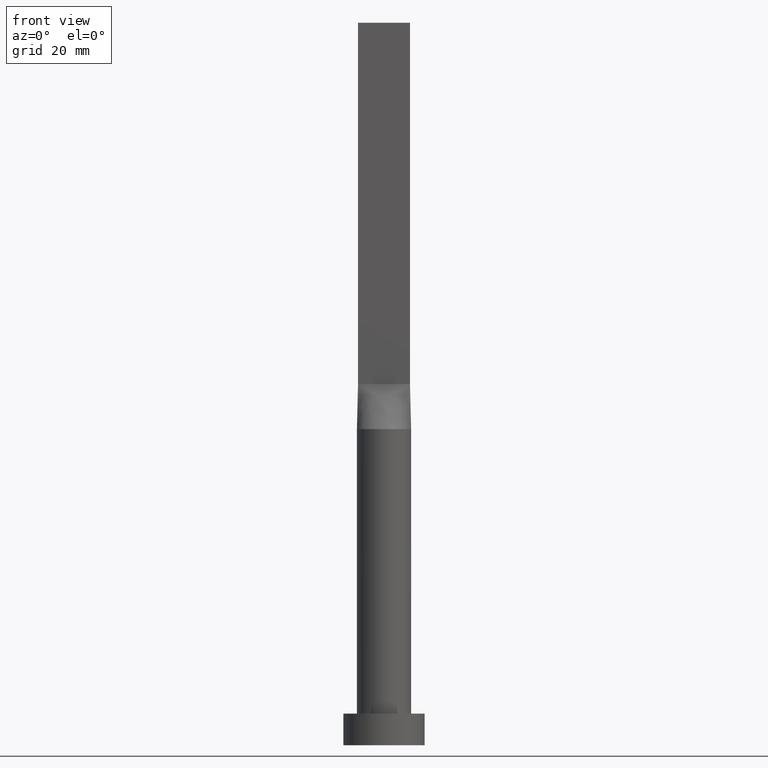
[diagram: clean part render]
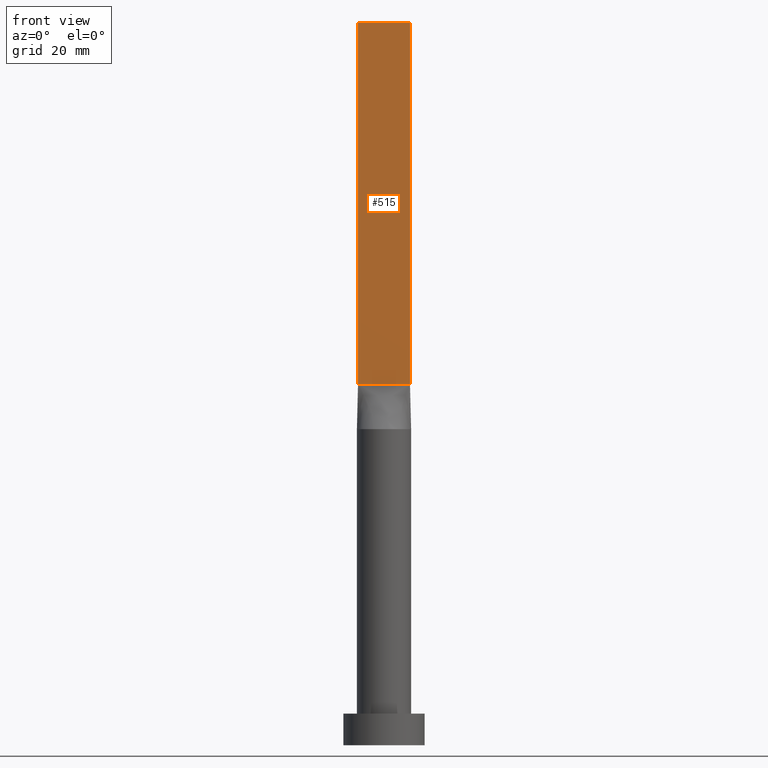
[diagram: same view with one face highlighted and labeled with its STEP entity id]
A machine part, front view. The second image highlights one B-rep face of the part: STEP entity #515.
In plain terms, the highlighted planar face has unit normal (0, 1, -0).
Its self-contained STEP definition (entity closure, byte-faithful):
#31 = DIRECTION ( 'NONE',  ( -1.000000000000000000, 5.656706986880892860E-17, 0.000000000000000000 ) ) ;
#35 = CARTESIAN_POINT ( 'NONE',  ( 5.750000000000000000, -1.249999999999999778, 160.0000000000000000 ) ) ;
#42 = DIRECTION ( 'NONE',  ( -0.000000000000000000, -0.000000000000000000, -1.000000000000000000 ) ) ;
#49 = LINE ( 'NONE', #354, #101 ) ;
#61 = EDGE_CURVE ( 'NONE', #340, #577, #466, .T. ) ;
#99 = VECTOR ( 'NONE', #42, 1000.000000000000000 ) ;
#101 = VECTOR ( 'NONE', #552, 1000.000000000000000 ) ;
#135 = FACE_OUTER_BOUND ( 'NONE', #402, .T. ) ;
#140 = CARTESIAN_POINT ( 'NONE',  ( 5.750000000000000000, -1.249999999999999778, 160.0000000000000000 ) ) ;
#145 = AXIS2_PLACEMENT_3D ( 'NONE', #306, #341, #31 ) ;
#168 = CARTESIAN_POINT ( 'NONE',  ( 5.750000000000000000, -1.249999999999999778, 80.00000000000000000 ) ) ;
#179 = LINE ( 'NONE', #140, #99 ) ;
#187 = EDGE_CURVE ( 'NONE', #577, #295, #179, .T. ) ;
#194 = EDGE_CURVE ( 'NONE', #597, #295, #462, .T. ) ;
#220 = ORIENTED_EDGE ( 'NONE', *, *, #194, .T. ) ;
#246 = EDGE_CURVE ( 'NONE', #340, #597, #49, .T. ) ;
#262 = VECTOR ( 'NONE', #366, 1000.000000000000000 ) ;
#271 = ORIENTED_EDGE ( 'NONE', *, *, #246, .T. ) ;
#295 = VERTEX_POINT ( 'NONE', #168 ) ;
#300 = VECTOR ( 'NONE', #562, 1000.000000000000000 ) ;
#306 = CARTESIAN_POINT ( 'NONE',  ( -5.750000000000000000, -1.249999999999999112, 160.0000000000000000 ) ) ;
#340 = VERTEX_POINT ( 'NONE', #383 ) ;
#341 = DIRECTION ( 'NONE',  ( 5.656706986880892860E-17, 1.000000000000000000, -0.000000000000000000 ) ) ;
#349 = CARTESIAN_POINT ( 'NONE',  ( -5.750000000000000000, -1.249999999999999112, 80.00000000000000000 ) ) ;
#354 = CARTESIAN_POINT ( 'NONE',  ( -5.750000000000000000, -1.249999999999999112, 160.0000000000000000 ) ) ;
#366 = DIRECTION ( 'NONE',  ( 1.000000000000000000, -5.656706986880892860E-17, 0.000000000000000000 ) ) ;
#383 = CARTESIAN_POINT ( 'NONE',  ( -5.750000000000000000, -1.249999999999999112, 160.0000000000000000 ) ) ;
#402 = EDGE_LOOP ( 'NONE', ( #220, #410, #492, #271 ) ) ;
#403 = PLANE ( 'NONE',  #145 ) ;
#410 = ORIENTED_EDGE ( 'NONE', *, *, #187, .F. ) ;
#418 = CARTESIAN_POINT ( 'NONE',  ( -5.750000000000000000, -1.249999999999999112, 160.0000000000000000 ) ) ;
#462 = LINE ( 'NONE', #512, #300 ) ;
#466 = LINE ( 'NONE', #418, #262 ) ;
#492 = ORIENTED_EDGE ( 'NONE', *, *, #61, .F. ) ;
#512 = CARTESIAN_POINT ( 'NONE',  ( -5.750000000000000000, -1.249999999999999112, 80.00000000000000000 ) ) ;
#515 = ADVANCED_FACE ( 'NONE', ( #135 ), #403, .F. ) ;
#552 = DIRECTION ( 'NONE',  ( -0.000000000000000000, -0.000000000000000000, -1.000000000000000000 ) ) ;
#562 = DIRECTION ( 'NONE',  ( 1.000000000000000000, -5.656706986880892860E-17, 0.000000000000000000 ) ) ;
#577 = VERTEX_POINT ( 'NONE', #35 ) ;
#597 = VERTEX_POINT ( 'NONE', #349 ) ;